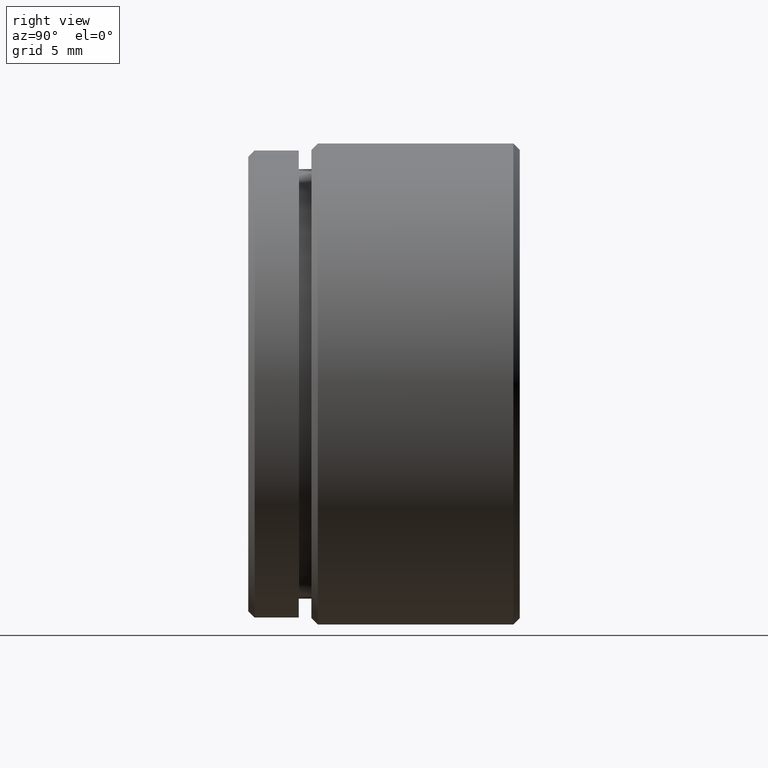
[diagram: clean part render]
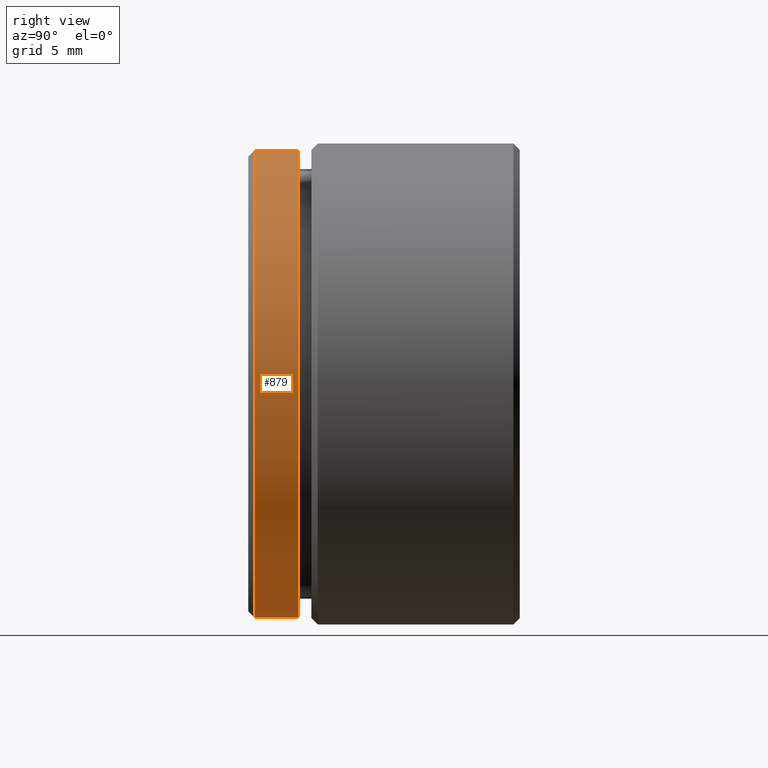
[diagram: same view with one face highlighted and labeled with its STEP entity id]
A machine part, right view. The second image highlights one B-rep face of the part: STEP entity #879.
In plain terms, the highlighted cylindrical surface (partial cylindrical patch) has radius 18.5 mm, axis along (-0, -1, -0).
Its self-contained STEP definition (entity closure, byte-faithful):
#23 = AXIS2_PLACEMENT_3D ( 'NONE', #55, #976, #815 ) ;
#35 = CARTESIAN_POINT ( 'NONE',  ( 2.265596578422603400E-015, 4.000000000000000000, 18.50000000000000000 ) ) ;
#55 = CARTESIAN_POINT ( 'NONE',  ( 0.0000000000000000000, 0.0000000000000000000, 0.0000000000000000000 ) ) ;
#97 = VECTOR ( 'NONE', #975, 1000.000000000000000 ) ;
#179 = ORIENTED_EDGE ( 'NONE', *, *, #934, .F. ) ;
#195 = CYLINDRICAL_SURFACE ( 'NONE', #23, 18.50000000000000000 ) ;
#231 = DIRECTION ( 'NONE',  ( -0.0000000000000000000, -1.000000000000000000, -0.0000000000000000000 ) ) ;
#232 = CARTESIAN_POINT ( 'NONE',  ( 0.0000000000000000000, 4.000000000000000000, -18.50000000000000000 ) ) ;
#277 = ORIENTED_EDGE ( 'NONE', *, *, #1025, .T. ) ;
#292 = CIRCLE ( 'NONE', #997, 18.50000000000000000 ) ;
#295 = CIRCLE ( 'NONE', #1046, 18.50000000000000000 ) ;
#308 = VERTEX_POINT ( 'NONE', #329 ) ;
#329 = CARTESIAN_POINT ( 'NONE',  ( 2.265596578422603000E-015, 0.4999999999999979500, -18.50000000000000000 ) ) ;
#368 = VERTEX_POINT ( 'NONE', #864 ) ;
#417 = VERTEX_POINT ( 'NONE', #232 ) ;
#455 = ORIENTED_EDGE ( 'NONE', *, *, #1088, .F. ) ;
#625 = VECTOR ( 'NONE', #231, 1000.000000000000000 ) ;
#634 = VERTEX_POINT ( 'NONE', #35 ) ;
#641 = LINE ( 'NONE', #906, #97 ) ;
#714 = DIRECTION ( 'NONE',  ( 0.0000000000000000000, 0.0000000000000000000, -1.000000000000000000 ) ) ;
#715 = DIRECTION ( 'NONE',  ( -0.0000000000000000000, -1.000000000000000000, -0.0000000000000000000 ) ) ;
#719 = ORIENTED_EDGE ( 'NONE', *, *, #944, .T. ) ;
#721 = CARTESIAN_POINT ( 'NONE',  ( 0.0000000000000000000, 4.000000000000000000, 0.0000000000000000000 ) ) ;
#798 = DIRECTION ( 'NONE',  ( 0.0000000000000000000, 0.0000000000000000000, -1.000000000000000000 ) ) ;
#815 = DIRECTION ( 'NONE',  ( 0.0000000000000000000, 0.0000000000000000000, -1.000000000000000000 ) ) ;
#816 = DIRECTION ( 'NONE',  ( -0.0000000000000000000, -1.000000000000000000, -0.0000000000000000000 ) ) ;
#819 = CARTESIAN_POINT ( 'NONE',  ( 0.0000000000000000000, 0.4999999999999979500, 0.0000000000000000000 ) ) ;
#821 = FACE_OUTER_BOUND ( 'NONE', #1105, .T. ) ;
#864 = CARTESIAN_POINT ( 'NONE',  ( 0.0000000000000000000, 0.4999999999999979500, 18.50000000000000000 ) ) ;
#879 = ADVANCED_FACE ( 'NONE', ( #821 ), #195, .T. ) ;
#906 = CARTESIAN_POINT ( 'NONE',  ( 0.0000000000000000000, 0.0000000000000000000, -18.50000000000000000 ) ) ;
#934 = EDGE_CURVE ( 'NONE', #308, #368, #295, .T. ) ;
#944 = EDGE_CURVE ( 'NONE', #417, #634, #292, .T. ) ;
#975 = DIRECTION ( 'NONE',  ( -0.0000000000000000000, -1.000000000000000000, -0.0000000000000000000 ) ) ;
#976 = DIRECTION ( 'NONE',  ( -0.0000000000000000000, -1.000000000000000000, -0.0000000000000000000 ) ) ;
#997 = AXIS2_PLACEMENT_3D ( 'NONE', #721, #715, #714 ) ;
#1025 = EDGE_CURVE ( 'NONE', #634, #368, #1039, .T. ) ;
#1039 = LINE ( 'NONE', #1091, #625 ) ;
#1046 = AXIS2_PLACEMENT_3D ( 'NONE', #819, #816, #798 ) ;
#1088 = EDGE_CURVE ( 'NONE', #417, #308, #641, .T. ) ;
#1091 = CARTESIAN_POINT ( 'NONE',  ( 2.265596578422603400E-015, 0.0000000000000000000, 18.50000000000000000 ) ) ;
#1105 = EDGE_LOOP ( 'NONE', ( #719, #277, #179, #455 ) ) ;